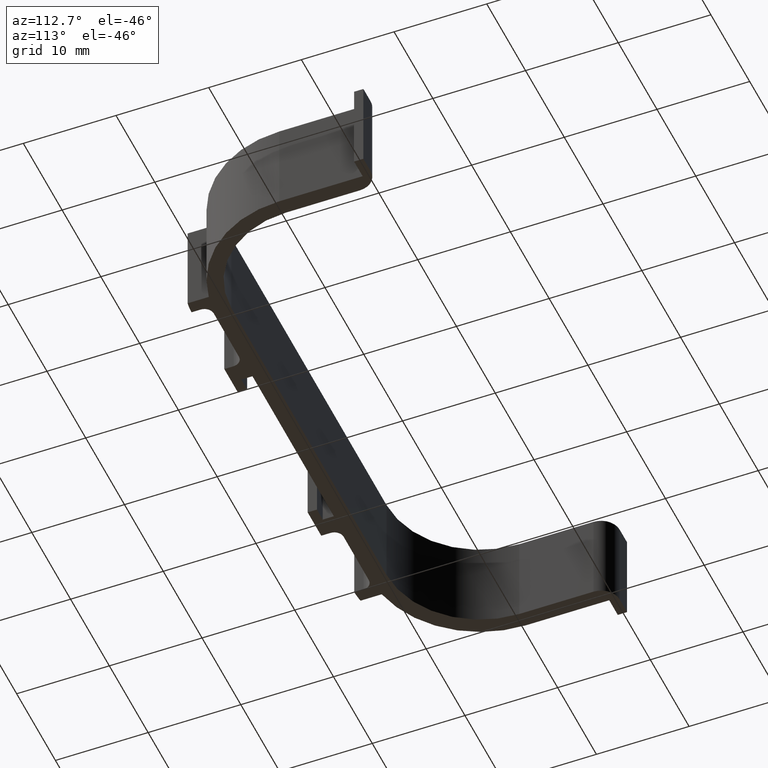
[diagram: clean part render]
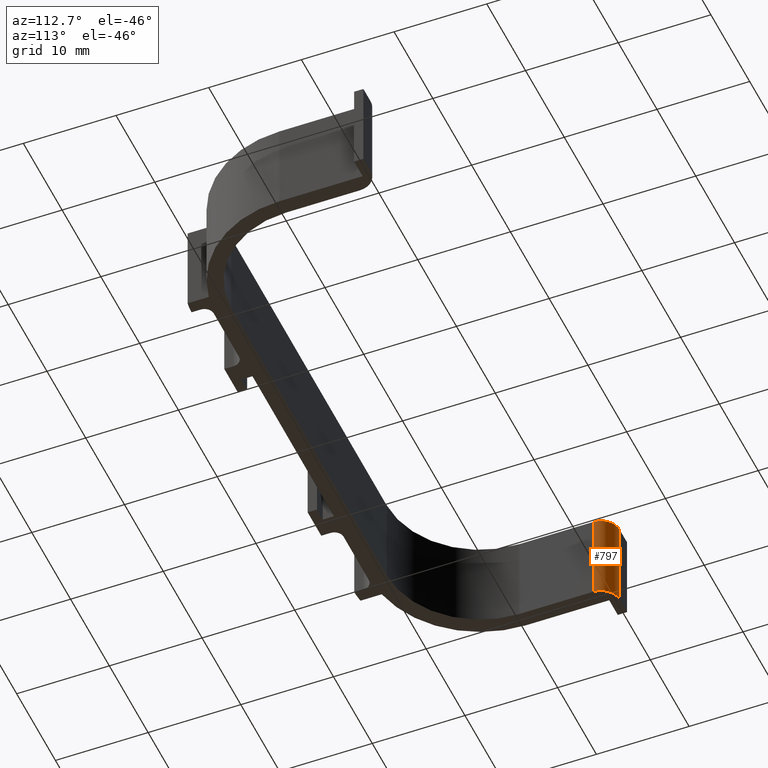
[diagram: same view with one face highlighted and labeled with its STEP entity id]
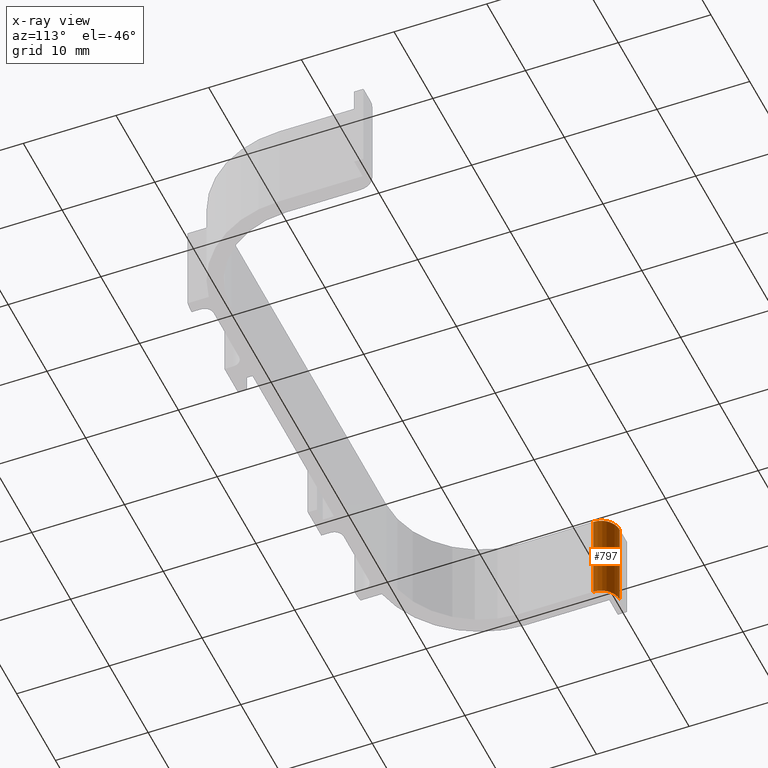
[diagram: x-ray of the same camera — body ghosted, the highlighted face saturated]
A machine part, auxiliary view. The second image highlights one B-rep face of the part: STEP entity #797.
The next image is the same camera in x-ray: the body ghosted, the highlighted face saturated — about 0% of this face is hidden behind the body in this view.
In plain terms, the highlighted cylindrical surface (edge-blend (fillet) strip) has radius 2 mm, axis along (0, 0, -1).
Its self-contained STEP definition (entity closure, byte-faithful):
#45=FACE_OUTER_BOUND('',#87,.T.);
#87=EDGE_LOOP('',(#545,#546,#547,#548));
#129=LINE('',#1143,#225);
#130=LINE('',#1146,#226);
#225=VECTOR('',#913,10.);
#226=VECTOR('',#916,10.);
#321=CIRCLE('',#842,2.);
#322=CIRCLE('',#843,2.);
#345=VERTEX_POINT('',#1139);
#346=VERTEX_POINT('',#1140);
#347=VERTEX_POINT('',#1142);
#348=VERTEX_POINT('',#1144);
#425=EDGE_CURVE('',#345,#346,#321,.T.);
#426=EDGE_CURVE('',#346,#347,#129,.T.);
#427=EDGE_CURVE('',#347,#348,#322,.T.);
#428=EDGE_CURVE('',#348,#345,#130,.T.);
#545=ORIENTED_EDGE('',*,*,#425,.T.);
#546=ORIENTED_EDGE('',*,*,#426,.T.);
#547=ORIENTED_EDGE('',*,*,#427,.T.);
#548=ORIENTED_EDGE('',*,*,#428,.T.);
#785=CYLINDRICAL_SURFACE('',#841,2.);
#797=ADVANCED_FACE('',(#45),#785,.T.);
#841=AXIS2_PLACEMENT_3D('',#1138,#909,#910);
#842=AXIS2_PLACEMENT_3D('',#1141,#911,#912);
#843=AXIS2_PLACEMENT_3D('',#1145,#914,#915);
#909=DIRECTION('center_axis',(0.,0.,-1.));
#910=DIRECTION('ref_axis',(0.707106781186548,0.707106781186547,0.));
#911=DIRECTION('center_axis',(0.,0.,1.));
#912=DIRECTION('ref_axis',(0.707106781186548,0.707106781186547,0.));
#913=DIRECTION('',(0.,0.,1.));
#914=DIRECTION('center_axis',(0.,0.,-1.));
#915=DIRECTION('ref_axis',(0.707106781186548,0.707106781186547,0.));
#916=DIRECTION('',(0.,0.,-1.));
#1138=CARTESIAN_POINT('Origin',(-32.1,18.,2.5));
#1139=CARTESIAN_POINT('',(-30.1,18.,-5.));
#1140=CARTESIAN_POINT('',(-32.1,20.,-5.));
#1141=CARTESIAN_POINT('Origin',(-32.1,18.,-5.));
#1142=CARTESIAN_POINT('',(-32.1,20.,5.));
#1143=CARTESIAN_POINT('',(-32.1,20.,2.5));
#1144=CARTESIAN_POINT('',(-30.1,18.,5.));
#1145=CARTESIAN_POINT('Origin',(-32.1,18.,5.));
#1146=CARTESIAN_POINT('',(-30.1,18.,2.5));